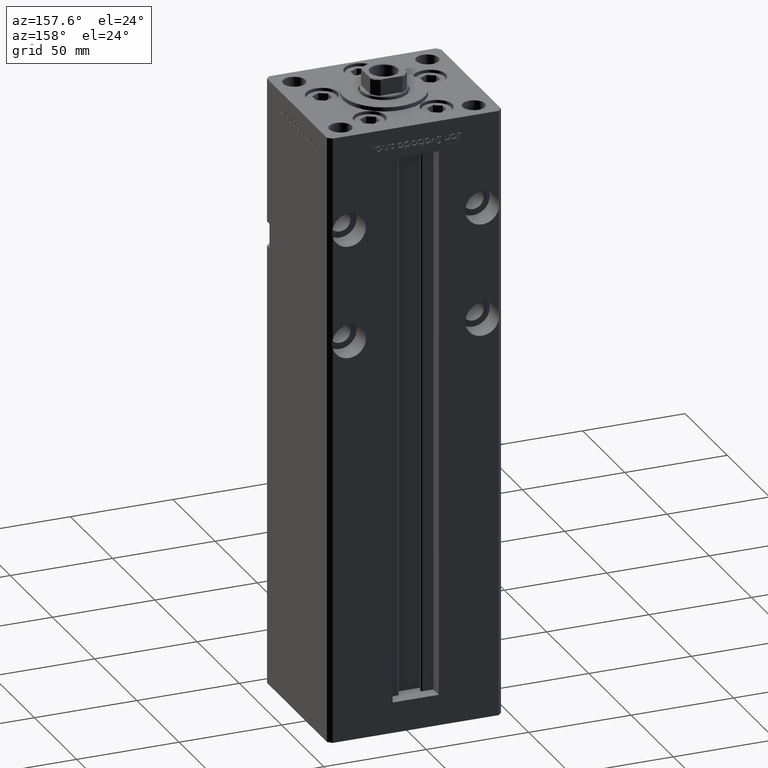
[diagram: clean part render]
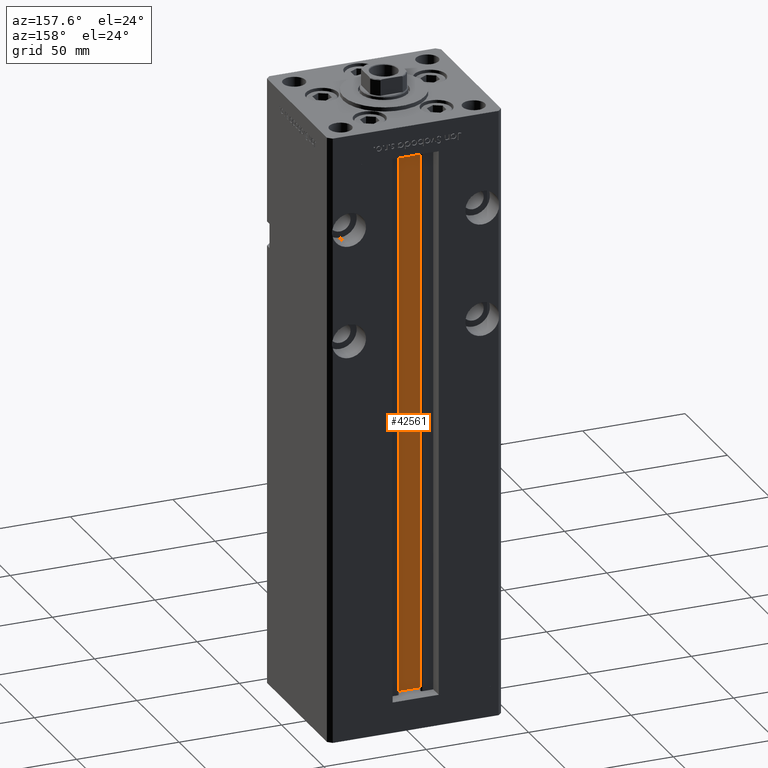
[diagram: same view with one face highlighted and labeled with its STEP entity id]
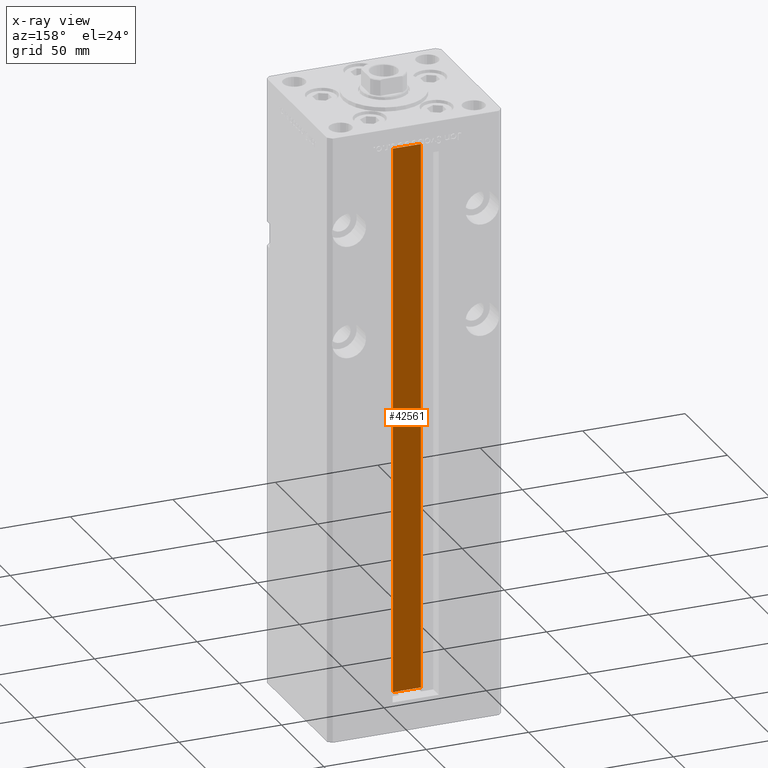
[diagram: x-ray of the same camera — body ghosted, the highlighted face saturated]
A machine part, auxiliary view. The second image highlights one B-rep face of the part: STEP entity #42561.
The next image is the same camera in x-ray: the body ghosted, the highlighted face saturated — about 0% of this face is hidden behind the body in this view.
In plain terms, the highlighted planar face has unit normal (0, -1, 0).
Its self-contained STEP definition (entity closure, byte-faithful):
#3844 = DIRECTION ( 'NONE',  ( 0.000000000000000000, -1.000000000000000000, -0.000000000000000000 ) ) ;
#7877 = CARTESIAN_POINT ( 'NONE',  ( 6.876153656360465938, 26.99999999999986855, 0.000000000000000000 ) ) ;
#8210 = DIRECTION ( 'NONE',  ( 1.000000000000000000, -0.000000000000000000, -0.000000000000000000 ) ) ;
#9461 = VECTOR ( 'NONE', #32115, 1000.000000000000000 ) ;
#9970 = EDGE_LOOP ( 'NONE', ( #40818, #48604, #43252, #13619 ) ) ;
#11087 = CARTESIAN_POINT ( 'NONE',  ( -6.876153656360465938, 26.99999999999986855, 268.5000000000000000 ) ) ;
#11556 = EDGE_CURVE ( 'NONE', #51707, #14721, #27509, .T. ) ;
#13619 = ORIENTED_EDGE ( 'NONE', *, *, #11556, .F. ) ;
#14721 = VERTEX_POINT ( 'NONE', #11087 ) ;
#15699 = CARTESIAN_POINT ( 'NONE',  ( -6.876153656360465938, 26.99999999999986855, 0.000000000000000000 ) ) ;
#16333 = VERTEX_POINT ( 'NONE', #47844 ) ;
#19594 = VERTEX_POINT ( 'NONE', #52266 ) ;
#20240 = DIRECTION ( 'NONE',  ( 0.000000000000000000, 0.000000000000000000, -1.000000000000000000 ) ) ;
#26872 = LINE ( 'NONE', #39232, #38590 ) ;
#27509 = LINE ( 'NONE', #47666, #29089 ) ;
#28343 = CARTESIAN_POINT ( 'NONE',  ( 6.876153656360465938, 26.99999999999986855, 268.5000000000000000 ) ) ;
#29089 = VECTOR ( 'NONE', #32084, 1000.000000000000000 ) ;
#32084 = DIRECTION ( 'NONE',  ( -1.000000000000000000, 0.000000000000000000, 0.000000000000000000 ) ) ;
#32115 = DIRECTION ( 'NONE',  ( -0.000000000000000000, -0.000000000000000000, 1.000000000000000000 ) ) ;
#36713 = CARTESIAN_POINT ( 'NONE',  ( 6.876153656360465938, 26.99999999999986855, 0.000000000000000000 ) ) ;
#38590 = VECTOR ( 'NONE', #47297, 1000.000000000000000 ) ;
#39232 = CARTESIAN_POINT ( 'NONE',  ( 6.876153656360465938, 26.99999999999986855, 0.000000000000000000 ) ) ;
#40283 = VECTOR ( 'NONE', #8210, 1000.000000000000000 ) ;
#40818 = ORIENTED_EDGE ( 'NONE', *, *, #47423, .F. ) ;
#42561 = ADVANCED_FACE ( 'NONE', ( #44978 ), #49808, .F. ) ;
#43252 = ORIENTED_EDGE ( 'NONE', *, *, #50837, .T. ) ;
#43401 = EDGE_CURVE ( 'NONE', #19594, #16333, #49094, .T. ) ;
#44586 = AXIS2_PLACEMENT_3D ( 'NONE', #7877, #3844, #20240 ) ;
#44978 = FACE_OUTER_BOUND ( 'NONE', #9970, .T. ) ;
#47297 = DIRECTION ( 'NONE',  ( -0.000000000000000000, -0.000000000000000000, 1.000000000000000000 ) ) ;
#47423 = EDGE_CURVE ( 'NONE', #16333, #51707, #26872, .T. ) ;
#47666 = CARTESIAN_POINT ( 'NONE',  ( 0.000000000000000000, 26.99999999999986855, 268.5000000000000000 ) ) ;
#47844 = CARTESIAN_POINT ( 'NONE',  ( 6.876153656360465938, 26.99999999999986855, 0.000000000000000000 ) ) ;
#48604 = ORIENTED_EDGE ( 'NONE', *, *, #43401, .F. ) ;
#49094 = LINE ( 'NONE', #36713, #40283 ) ;
#49808 = PLANE ( 'NONE',  #44586 ) ;
#50837 = EDGE_CURVE ( 'NONE', #19594, #14721, #52536, .T. ) ;
#51707 = VERTEX_POINT ( 'NONE', #28343 ) ;
#52266 = CARTESIAN_POINT ( 'NONE',  ( -6.876153656360465938, 26.99999999999986855, 0.000000000000000000 ) ) ;
#52536 = LINE ( 'NONE', #15699, #9461 ) ;